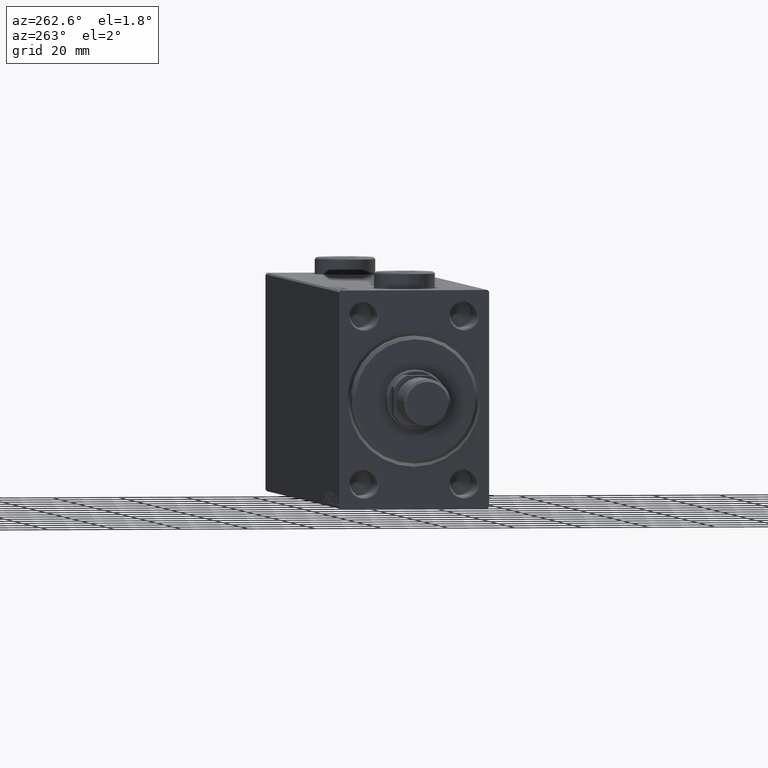
[diagram: clean part render]
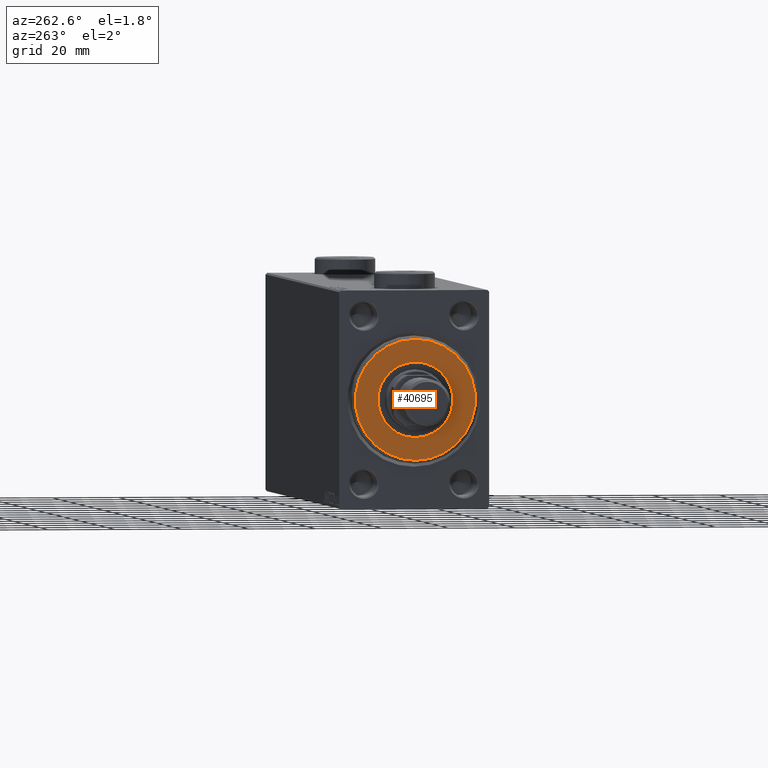
[diagram: same view with one face highlighted and labeled with its STEP entity id]
A machine part, auxiliary view. The second image highlights one B-rep face of the part: STEP entity #40695.
In plain terms, the highlighted planar face has unit normal (-1, 0, 0).
Its self-contained STEP definition (entity closure, byte-faithful):
#248 = VERTEX_POINT ( 'NONE', #39949 ) ;
#1062 = CARTESIAN_POINT ( 'NONE',  ( 3.000000000000000000, 0.000000000000000000, 0.000000000000000000 ) ) ;
#1570 = AXIS2_PLACEMENT_3D ( 'NONE', #1062, #44112, #8048 ) ;
#1703 = ORIENTED_EDGE ( 'NONE', *, *, #8721, .T. ) ;
#2486 = CARTESIAN_POINT ( 'NONE',  ( 3.000000000000000000, 0.000000000000000000, 0.000000000000000000 ) ) ;
#3056 = CARTESIAN_POINT ( 'NONE',  ( 3.000000000000000000, 0.000000000000000000, 0.000000000000000000 ) ) ;
#3535 = DIRECTION ( 'NONE',  ( 0.000000000000000000, 0.000000000000000000, -1.000000000000000000 ) ) ;
#4497 = VERTEX_POINT ( 'NONE', #31949 ) ;
#6154 = EDGE_CURVE ( 'NONE', #30228, #248, #45414, .T. ) ;
#6672 = ORIENTED_EDGE ( 'NONE', *, *, #6154, .F. ) ;
#7494 = CARTESIAN_POINT ( 'NONE',  ( 3.000000000000000000, 0.000000000000000000, 0.000000000000000000 ) ) ;
#8048 = DIRECTION ( 'NONE',  ( 0.000000000000000000, 0.000000000000000000, -1.000000000000000000 ) ) ;
#8721 = EDGE_CURVE ( 'NONE', #4497, #30446, #43990, .T. ) ;
#10175 = DIRECTION ( 'NONE',  ( 0.000000000000000000, 0.000000000000000000, -1.000000000000000000 ) ) ;
#11256 = CARTESIAN_POINT ( 'NONE',  ( 3.000000000000000000, 0.000000000000000000, 0.000000000000000000 ) ) ;
#12170 = AXIS2_PLACEMENT_3D ( 'NONE', #7494, #14683, #3535 ) ;
#13429 = FACE_BOUND ( 'NONE', #23753, .T. ) ;
#13892 = DIRECTION ( 'NONE',  ( 1.000000000000000000, -0.000000000000000000, 0.000000000000000000 ) ) ;
#14683 = DIRECTION ( 'NONE',  ( 1.000000000000000000, 0.000000000000000000, 0.000000000000000000 ) ) ;
#15888 = DIRECTION ( 'NONE',  ( 1.000000000000000000, -0.000000000000000000, 0.000000000000000000 ) ) ;
#16925 = AXIS2_PLACEMENT_3D ( 'NONE', #2486, #13892, #10175 ) ;
#17142 = FACE_OUTER_BOUND ( 'NONE', #35822, .T. ) ;
#17239 = DIRECTION ( 'NONE',  ( 1.000000000000000000, -0.000000000000000000, 0.000000000000000000 ) ) ;
#19469 = AXIS2_PLACEMENT_3D ( 'NONE', #3056, #17239, #31434 ) ;
#22215 = CIRCLE ( 'NONE', #31114, 17.99999999999999645 ) ;
#23753 = EDGE_LOOP ( 'NONE', ( #6672, #43683 ) ) ;
#24977 = EDGE_CURVE ( 'NONE', #248, #30228, #26277, .T. ) ;
#24999 = CARTESIAN_POINT ( 'NONE',  ( 3.000000000000000000, 0.000000000000000000, 17.99999999999999645 ) ) ;
#26277 = CIRCLE ( 'NONE', #12170, 11.25000000000000178 ) ;
#29612 = DIRECTION ( 'NONE',  ( 0.000000000000000000, 0.000000000000000000, -1.000000000000000000 ) ) ;
#30228 = VERTEX_POINT ( 'NONE', #43650 ) ;
#30446 = VERTEX_POINT ( 'NONE', #24999 ) ;
#31114 = AXIS2_PLACEMENT_3D ( 'NONE', #11256, #15888, #29612 ) ;
#31434 = DIRECTION ( 'NONE',  ( 0.000000000000000000, 0.000000000000000000, -1.000000000000000000 ) ) ;
#31949 = CARTESIAN_POINT ( 'NONE',  ( 3.000000000000000000, 2.265596578422603002E-15, -17.99999999999999645 ) ) ;
#35056 = PLANE ( 'NONE',  #16925 ) ;
#35822 = EDGE_LOOP ( 'NONE', ( #41522, #1703 ) ) ;
#39949 = CARTESIAN_POINT ( 'NONE',  ( 3.000000000000000000, 1.377727649040772586E-15, 11.25000000000000178 ) ) ;
#40695 = ADVANCED_FACE ( 'NONE', ( #17142, #13429 ), #35056, .T. ) ;
#41522 = ORIENTED_EDGE ( 'NONE', *, *, #43466, .T. ) ;
#43466 = EDGE_CURVE ( 'NONE', #30446, #4497, #22215, .T. ) ;
#43650 = CARTESIAN_POINT ( 'NONE',  ( 3.000000000000000000, 0.000000000000000000, -11.25000000000000178 ) ) ;
#43683 = ORIENTED_EDGE ( 'NONE', *, *, #24977, .F. ) ;
#43990 = CIRCLE ( 'NONE', #19469, 17.99999999999999645 ) ;
#44112 = DIRECTION ( 'NONE',  ( 1.000000000000000000, 0.000000000000000000, 0.000000000000000000 ) ) ;
#45414 = CIRCLE ( 'NONE', #1570, 11.25000000000000178 ) ;